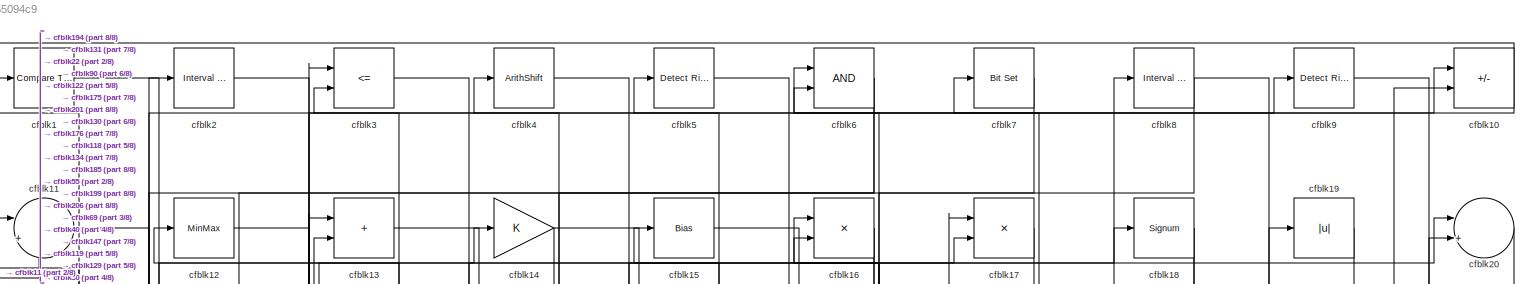
[diagram: root canvas - part 1/8, full width, top band]
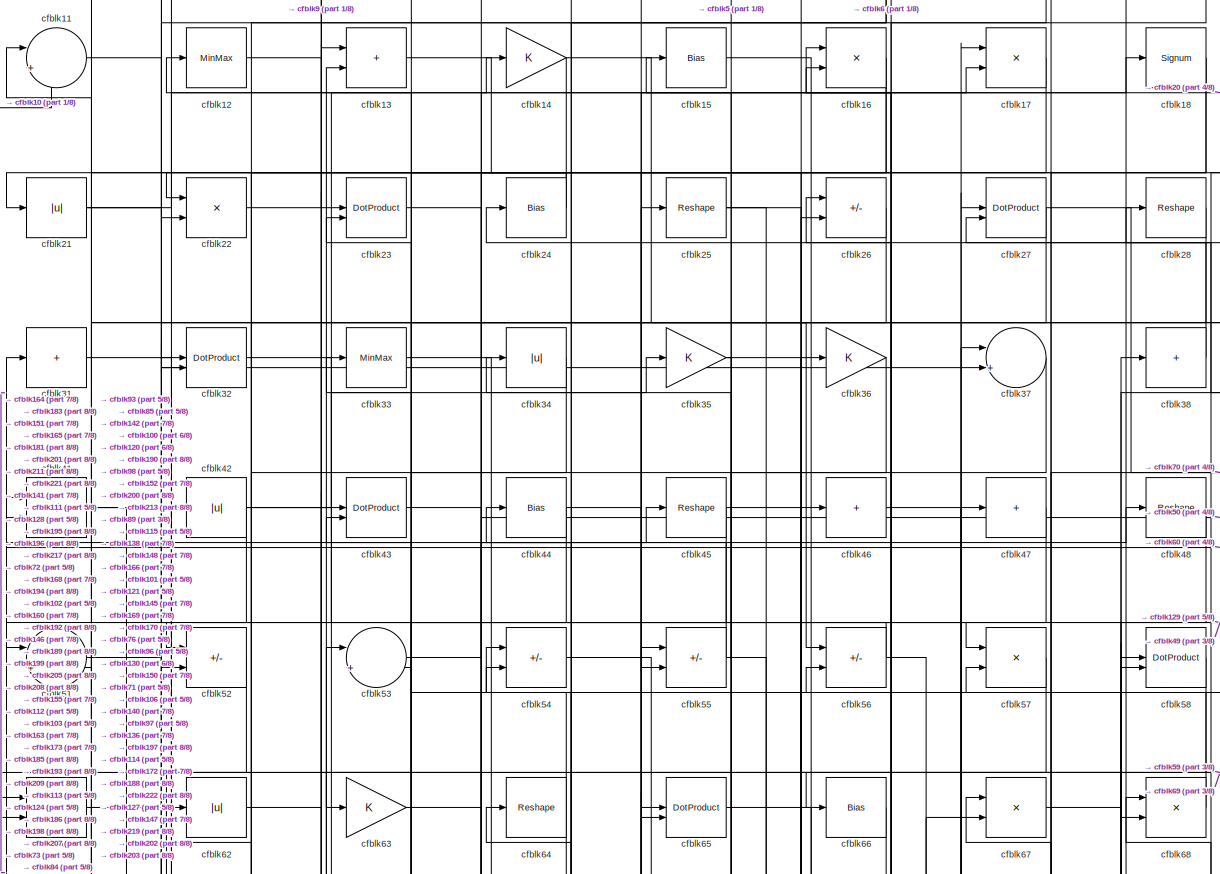
[diagram: root canvas - part 2/8, full width, top band]
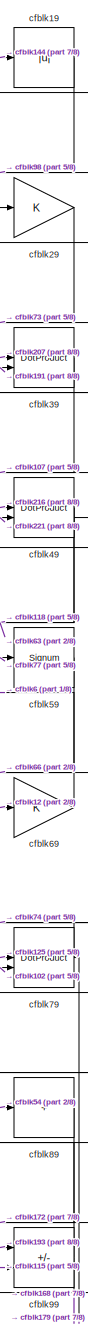
[diagram: root canvas - part 3/8, top right region]
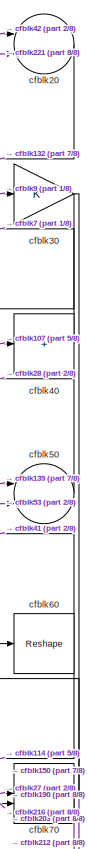
[diagram: root canvas - part 4/8, top right region]
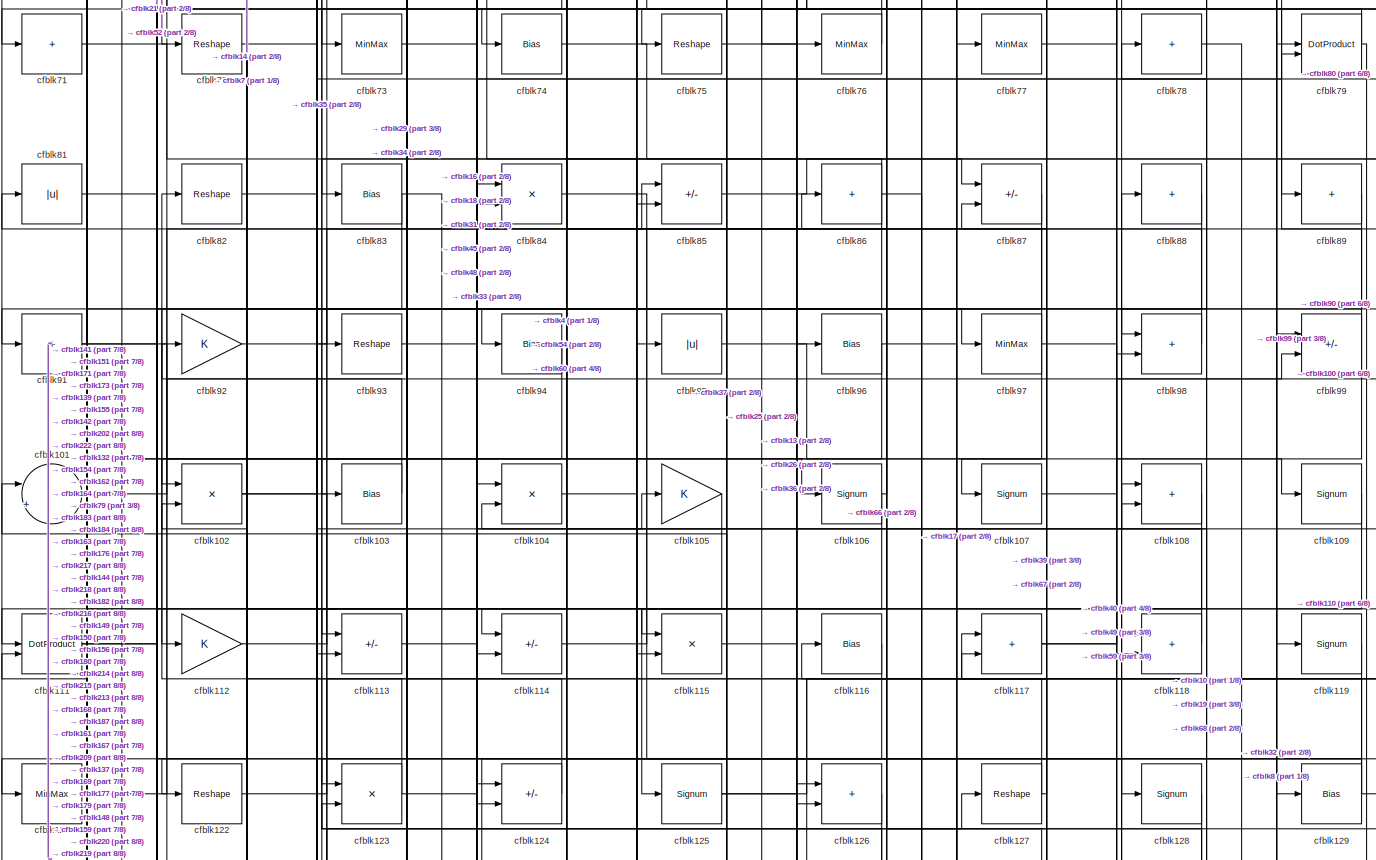
[diagram: root canvas - part 5/8, full width, middle band]
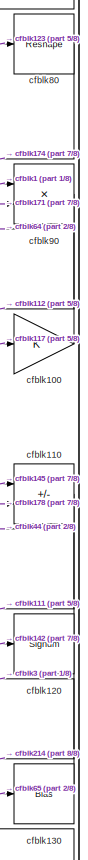
[diagram: root canvas - part 6/8, middle right region]
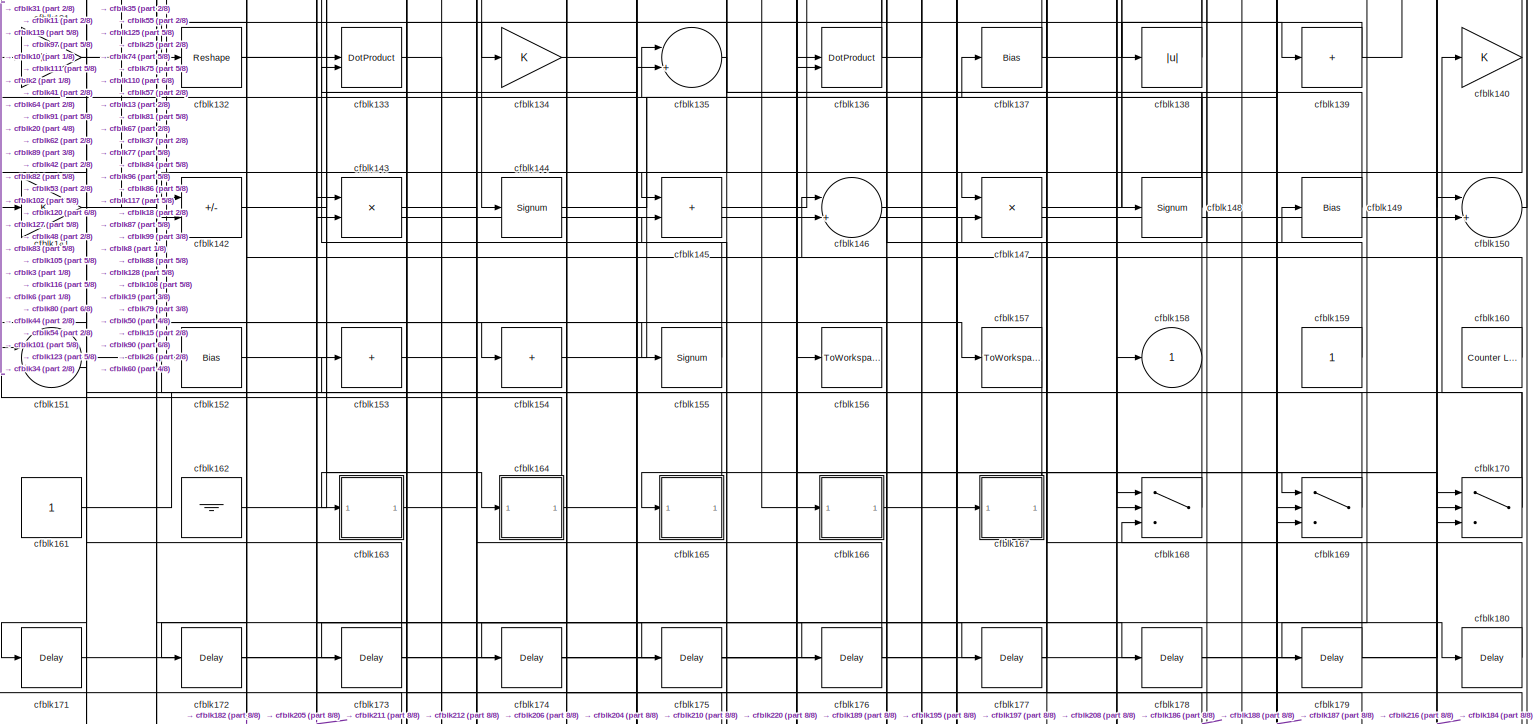
[diagram: root canvas - part 7/8, full width, bottom band]
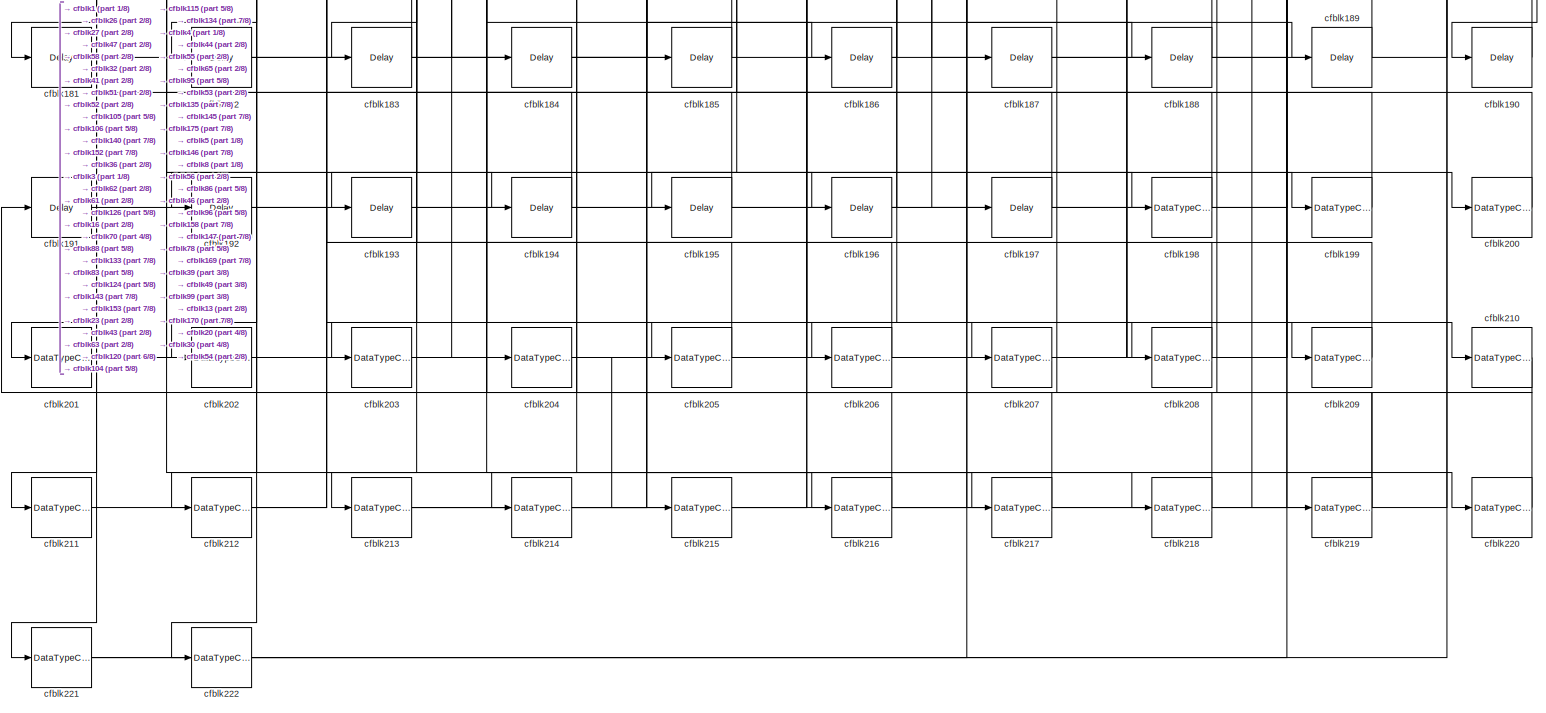
[diagram: root canvas - part 8/8, full width, bottom band]
MODEL slx_0407955094c9
KIND model
CONFIG AbsTol = auto
CONFIG EnableMultiTasking = off
CONFIG FixedStep = auto
CONFIG MaxStep = auto
CONFIG MinStep = auto
CONFIG RelTol = 1e-3
CONFIG SampleTimeConstraint = Unconstrained
CONFIG SolverName = VariableStepAuto
CONFIG StartTime = 0.0
CONFIG StopTime = 10.0
BLOCK [Reference] cfblk1  REF=hdlsllib/Logic and Bit
Operations/Compare
To Zero
  SourceBlock = hdlsllib/Logic and Bit\nOperations/Compare\nTo Zero
  SourceType = Compare To Zero
BLOCK [Sum] cfblk10
  IconShape = rectangular
  Inputs = +-
BLOCK [Gain] cfblk100
BLOCK [Sum] cfblk101
  Inputs = |++
BLOCK [Product] cfblk102
  Inputs = */
  RndMeth = Zero
  SaturateOnIntegerOverflow = on
BLOCK [Bias] cfblk103
  Bias = 0.0
  SaturateOnIntegerOverflow = off
BLOCK [Product] cfblk104
  Inputs = */
  RndMeth = Zero
  SaturateOnIntegerOverflow = on
BLOCK [Gain] cfblk105
BLOCK [Signum] cfblk106
BLOCK [Signum] cfblk107
BLOCK [Sum] cfblk108
  IconShape = rectangular
BLOCK [Signum] cfblk109
BLOCK [Sum] cfblk11
  Inputs = |++
BLOCK [Sum] cfblk110
  IconShape = rectangular
  Inputs = +-
BLOCK [DotProduct] cfblk111
  OutDataTypeStr = Inherit: Inherit via internal rule
BLOCK [Gain] cfblk112
BLOCK [Sum] cfblk113
  IconShape = rectangular
  Inputs = +-
BLOCK [Sum] cfblk114
  IconShape = rectangular
  Inputs = +-
BLOCK [Product] cfblk115
  Inputs = */
  RndMeth = Zero
  SaturateOnIntegerOverflow = on
BLOCK [Bias] cfblk116
  Bias = 0.0
  SaturateOnIntegerOverflow = off
BLOCK [Sum] cfblk117
  IconShape = rectangular
BLOCK [Sum] cfblk118
  IconShape = rectangular
BLOCK [Signum] cfblk119
BLOCK [MinMax] cfblk12
BLOCK [Signum] cfblk120
BLOCK [MinMax] cfblk121
BLOCK [Reshape] cfblk122
BLOCK [Product] cfblk123
  Inputs = */
  RndMeth = Zero
  SaturateOnIntegerOverflow = on
BLOCK [Sum] cfblk124
  IconShape = rectangular
  Inputs = +-
BLOCK [Signum] cfblk125
BLOCK [Sum] cfblk126
  IconShape = rectangular
BLOCK [Reshape] cfblk127
BLOCK [Signum] cfblk128
BLOCK [Bias] cfblk129
  Bias = 0.0
  SaturateOnIntegerOverflow = off
BLOCK [Sum] cfblk13
  IconShape = rectangular
BLOCK [Bias] cfblk130
  Bias = 0.0
  SaturateOnIntegerOverflow = off
BLOCK [Gain] cfblk131
BLOCK [Reshape] cfblk132
BLOCK [DotProduct] cfblk133
  OutDataTypeStr = Inherit: Inherit via internal rule
BLOCK [Gain] cfblk134
BLOCK [Sum] cfblk135
  Inputs = |++
BLOCK [DotProduct] cfblk136
  OutDataTypeStr = Inherit: Inherit via internal rule
BLOCK [Bias] cfblk137
  Bias = 0.0
  SaturateOnIntegerOverflow = off
BLOCK [Abs] cfblk138
  SaturateOnIntegerOverflow = off
BLOCK [Sum] cfblk139
  IconShape = rectangular
  Inputs = +
BLOCK [Gain] cfblk14
BLOCK [Gain] cfblk140
BLOCK [Gain] cfblk141
BLOCK [Sum] cfblk142
  IconShape = rectangular
  Inputs = +-
BLOCK [Product] cfblk143
  Inputs = */
  RndMeth = Zero
  SaturateOnIntegerOverflow = on
BLOCK [Signum] cfblk144
BLOCK [Sum] cfblk145
  IconShape = rectangular
BLOCK [Sum] cfblk146
  Inputs = |++
BLOCK [Product] cfblk147
  Inputs = */
  RndMeth = Zero
  SaturateOnIntegerOverflow = on
BLOCK [Signum] cfblk148
BLOCK [Bias] cfblk149
  Bias = 0.0
  SaturateOnIntegerOverflow = off
BLOCK [Bias] cfblk15
  Bias = 0.0
  SaturateOnIntegerOverflow = off
BLOCK [Sum] cfblk150
  Inputs = |++
BLOCK [Sum] cfblk151
  Inputs = |++
BLOCK [Bias] cfblk152
  Bias = 0.0
  SaturateOnIntegerOverflow = off
BLOCK [Sum] cfblk153
  IconShape = rectangular
  Inputs = +
BLOCK [Sum] cfblk154
  IconShape = rectangular
  Inputs = +
BLOCK [Signum] cfblk155
BLOCK [ToWorkspace] cfblk156
  MaxDataPoints = inf
  SampleTime = -1
  SaveFormat = Timeseries
  VariableName = simout
BLOCK [ToWorkspace] cfblk157
  MaxDataPoints = inf
  SampleTime = -1
  SaveFormat = Timeseries
  VariableName = simout
BLOCK [Outport] cfblk158
  VectorParamsAs1DForOutWhenUnconnected = off
BLOCK [Constant] cfblk159
  SampleTime = -1
BLOCK [Product] cfblk16
  Inputs = */
  RndMeth = Zero
  SaturateOnIntegerOverflow = on
BLOCK [Reference] cfblk160  REF=hdlsllib/Sources/Counter
Limited
  SourceBlock = hdlsllib/Sources/Counter\nLimited
  SourceType = Counter Limited
BLOCK [Constant] cfblk161
  SampleTime = -1
BLOCK [Ground] cfblk162
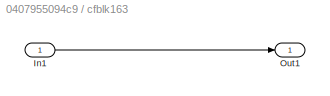
BLOCK [SubSystem] cfblk163
  LibrarySourceBlock = hdlsllib/Ports &\nSubsystems/Subsystem
BLOCK [Inport] cfblk163/In1
BLOCK [Outport] cfblk163/Out1
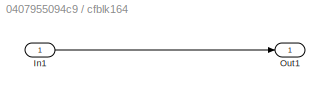
BLOCK [SubSystem] cfblk164
  LibrarySourceBlock = hdlsllib/Ports &\nSubsystems/Subsystem
BLOCK [Inport] cfblk164/In1
BLOCK [Outport] cfblk164/Out1
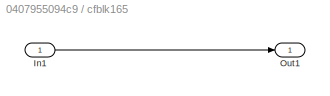
BLOCK [SubSystem] cfblk165
  LibrarySourceBlock = hdlsllib/Ports &\nSubsystems/Subsystem
BLOCK [Inport] cfblk165/In1
BLOCK [Outport] cfblk165/Out1
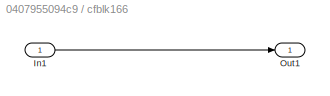
BLOCK [SubSystem] cfblk166
  LibrarySourceBlock = hdlsllib/Ports &\nSubsystems/Subsystem
BLOCK [Inport] cfblk166/In1
BLOCK [Outport] cfblk166/Out1
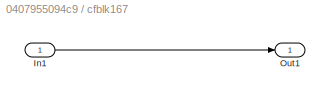
BLOCK [SubSystem] cfblk167
  LibrarySourceBlock = hdlsllib/Ports &\nSubsystems/Subsystem
BLOCK [Inport] cfblk167/In1
BLOCK [Outport] cfblk167/Out1
BLOCK [Switch] cfblk168
  InputSameDT = off
  SaturateOnIntegerOverflow = off
BLOCK [Switch] cfblk169
  InputSameDT = off
  SaturateOnIntegerOverflow = off
BLOCK [Product] cfblk17
  Inputs = */
  RndMeth = Zero
  SaturateOnIntegerOverflow = on
BLOCK [Switch] cfblk170
  InputSameDT = off
  SaturateOnIntegerOverflow = off
BLOCK [Delay] cfblk171
  InputPortMap = u0
  SampleTime = 1
BLOCK [Delay] cfblk172
  InputPortMap = u0
  SampleTime = 1
BLOCK [Delay] cfblk173
  InputPortMap = u0
  SampleTime = 1
BLOCK [Delay] cfblk174
  InputPortMap = u0
  SampleTime = 1
BLOCK [Delay] cfblk175
  InputPortMap = u0
  SampleTime = 1
BLOCK [Delay] cfblk176
  InputPortMap = u0
  SampleTime = 1
BLOCK [Delay] cfblk177
  InputPortMap = u0
  SampleTime = 1
BLOCK [Delay] cfblk178
  InputPortMap = u0
  SampleTime = 1
BLOCK [Delay] cfblk179
  InputPortMap = u0
  SampleTime = 1
BLOCK [Signum] cfblk18
BLOCK [Delay] cfblk180
  InputPortMap = u0
  SampleTime = 1
BLOCK [Delay] cfblk181
  InputPortMap = u0
  SampleTime = 1
BLOCK [Delay] cfblk182
  InputPortMap = u0
  SampleTime = 1
BLOCK [Delay] cfblk183
  InputPortMap = u0
  SampleTime = 1
BLOCK [Delay] cfblk184
  InputPortMap = u0
  SampleTime = 1
BLOCK [Delay] cfblk185
  InputPortMap = u0
  SampleTime = 1
BLOCK [Delay] cfblk186
  InputPortMap = u0
  SampleTime = 1
BLOCK [Delay] cfblk187
  InputPortMap = u0
  SampleTime = 1
BLOCK [Delay] cfblk188
  InputPortMap = u0
  SampleTime = 1
BLOCK [Delay] cfblk189
  InputPortMap = u0
  SampleTime = 1
BLOCK [Abs] cfblk19
  SaturateOnIntegerOverflow = off
BLOCK [Delay] cfblk190
  InputPortMap = u0
  SampleTime = 1
BLOCK [Delay] cfblk191
  InputPortMap = u0
  SampleTime = 1
BLOCK [Delay] cfblk192
  InputPortMap = u0
  SampleTime = 1
BLOCK [Delay] cfblk193
  InputPortMap = u0
  SampleTime = 1
BLOCK [Delay] cfblk194
  InputPortMap = u0
  SampleTime = 1
BLOCK [Delay] cfblk195
  InputPortMap = u0
  SampleTime = 1
BLOCK [Delay] cfblk196
  InputPortMap = u0
  SampleTime = 1
BLOCK [Delay] cfblk197
  InputPortMap = u0
  SampleTime = 1
BLOCK [DataTypeConversion] cfblk198
  OutDataTypeStr = uint8
  RndMeth = Floor
  SaturateOnIntegerOverflow = off
BLOCK [DataTypeConversion] cfblk199
  OutDataTypeStr = uint8
  RndMeth = Floor
  SaturateOnIntegerOverflow = off
BLOCK [Reference] cfblk2  REF=hdlsllib/Logic and Bit
Operations/Interval Test
  SourceBlock = hdlsllib/Logic and Bit\nOperations/Interval Test
  SourceType = Interval Test
BLOCK [Sum] cfblk20
  Inputs = |++
BLOCK [DataTypeConversion] cfblk200
  OutDataTypeStr = uint8
  RndMeth = Floor
  SaturateOnIntegerOverflow = off
BLOCK [DataTypeConversion] cfblk201
  RndMeth = Floor
  SaturateOnIntegerOverflow = off
BLOCK [DataTypeConversion] cfblk202
  OutDataTypeStr = uint8
  RndMeth = Floor
  SaturateOnIntegerOverflow = off
BLOCK [DataTypeConversion] cfblk203
  OutDataTypeStr = uint8
  RndMeth = Floor
  SaturateOnIntegerOverflow = off
BLOCK [DataTypeConversion] cfblk204
  RndMeth = Floor
  SaturateOnIntegerOverflow = off
BLOCK [DataTypeConversion] cfblk205
  OutDataTypeStr = uint8
  RndMeth = Floor
  SaturateOnIntegerOverflow = off
BLOCK [DataTypeConversion] cfblk206
  OutDataTypeStr = uint8
  RndMeth = Floor
  SaturateOnIntegerOverflow = off
BLOCK [DataTypeConversion] cfblk207
  OutDataTypeStr = uint8
  RndMeth = Floor
  SaturateOnIntegerOverflow = off
BLOCK [DataTypeConversion] cfblk208
  OutDataTypeStr = uint8
  RndMeth = Floor
  SaturateOnIntegerOverflow = off
BLOCK [DataTypeConversion] cfblk209
  OutDataTypeStr = uint8
  RndMeth = Floor
  SaturateOnIntegerOverflow = off
BLOCK [Abs] cfblk21
  SaturateOnIntegerOverflow = off
BLOCK [DataTypeConversion] cfblk210
  OutDataTypeStr = uint8
  RndMeth = Floor
  SaturateOnIntegerOverflow = off
BLOCK [DataTypeConversion] cfblk211
  OutDataTypeStr = uint8
  RndMeth = Floor
  SaturateOnIntegerOverflow = off
BLOCK [DataTypeConversion] cfblk212
  OutDataTypeStr = uint8
  RndMeth = Floor
  SaturateOnIntegerOverflow = off
BLOCK [DataTypeConversion] cfblk213
  RndMeth = Floor
  SaturateOnIntegerOverflow = off
BLOCK [DataTypeConversion] cfblk214
  OutDataTypeStr = uint8
  RndMeth = Floor
  SaturateOnIntegerOverflow = off
BLOCK [DataTypeConversion] cfblk215
  OutDataTypeStr = uint8
  RndMeth = Floor
  SaturateOnIntegerOverflow = off
BLOCK [DataTypeConversion] cfblk216
  RndMeth = Floor
  SaturateOnIntegerOverflow = off
BLOCK [DataTypeConversion] cfblk217
  OutDataTypeStr = uint8
  RndMeth = Floor
  SaturateOnIntegerOverflow = off
BLOCK [DataTypeConversion] cfblk218
  OutDataTypeStr = uint8
  RndMeth = Floor
  SaturateOnIntegerOverflow = off
BLOCK [DataTypeConversion] cfblk219
  RndMeth = Floor
  SaturateOnIntegerOverflow = off
BLOCK [Product] cfblk22
  Inputs = */
  RndMeth = Zero
  SaturateOnIntegerOverflow = on
BLOCK [DataTypeConversion] cfblk220
  OutDataTypeStr = uint8
  RndMeth = Floor
  SaturateOnIntegerOverflow = off
BLOCK [DataTypeConversion] cfblk221
  RndMeth = Floor
  SaturateOnIntegerOverflow = off
BLOCK [DataTypeConversion] cfblk222
  OutDataTypeStr = uint8
  RndMeth = Floor
  SaturateOnIntegerOverflow = off
BLOCK [DotProduct] cfblk23
  OutDataTypeStr = Inherit: Inherit via internal rule
BLOCK [Bias] cfblk24
  Bias = 0.0
  SaturateOnIntegerOverflow = off
BLOCK [Reshape] cfblk25
BLOCK [Sum] cfblk26
  IconShape = rectangular
  Inputs = +-
BLOCK [DotProduct] cfblk27
  OutDataTypeStr = Inherit: Inherit via internal rule
BLOCK [Reshape] cfblk28
BLOCK [Gain] cfblk29
BLOCK [RelationalOperator] cfblk3
  InputSameDT = off
  Operator = <=
  OutDataTypeStr = boolean
BLOCK [Gain] cfblk30
BLOCK [Sum] cfblk31
  IconShape = rectangular
  Inputs = +
BLOCK [DotProduct] cfblk32
  OutDataTypeStr = Inherit: Inherit via internal rule
BLOCK [MinMax] cfblk33
BLOCK [Abs] cfblk34
  SaturateOnIntegerOverflow = off
BLOCK [Gain] cfblk35
BLOCK [Gain] cfblk36
BLOCK [Sum] cfblk37
  Inputs = |++
BLOCK [Sum] cfblk38
  IconShape = rectangular
  Inputs = +
BLOCK [DotProduct] cfblk39
  OutDataTypeStr = Inherit: Inherit via internal rule
BLOCK [ArithShift] cfblk4
  BitShiftNumber = 8
  InputPortMap = u0
BLOCK [Sum] cfblk40
  IconShape = rectangular
  Inputs = +
BLOCK [Sum] cfblk41
  IconShape = rectangular
  Inputs = +-
BLOCK [Abs] cfblk42
  SaturateOnIntegerOverflow = off
BLOCK [DotProduct] cfblk43
  OutDataTypeStr = Inherit: Inherit via internal rule
BLOCK [Bias] cfblk44
  Bias = 0.0
  SaturateOnIntegerOverflow = off
BLOCK [Reshape] cfblk45
BLOCK [Sum] cfblk46
  IconShape = rectangular
  Inputs = +
BLOCK [Sum] cfblk47
  IconShape = rectangular
  Inputs = +
BLOCK [Reshape] cfblk48
BLOCK [DotProduct] cfblk49
  OutDataTypeStr = Inherit: Inherit via internal rule
BLOCK [Reference] cfblk5  REF=hdlsllib/Logic and Bit
Operations/Detect Rise
Positive
  SourceBlock = hdlsllib/Logic and Bit\nOperations/Detect Rise\nPositive
  SourceType = Detect Rise Positive
BLOCK [Sum] cfblk50
  Inputs = |++
BLOCK [Sum] cfblk51
  Inputs = |++
BLOCK [Sum] cfblk52
  IconShape = rectangular
  Inputs = +-
BLOCK [Sum] cfblk53
  Inputs = |++
BLOCK [Sum] cfblk54
  IconShape = rectangular
  Inputs = +-
BLOCK [Sum] cfblk55
  IconShape = rectangular
  Inputs = +-
BLOCK [Sum] cfblk56
  IconShape = rectangular
  Inputs = +-
BLOCK [Product] cfblk57
  Inputs = */
  RndMeth = Zero
  SaturateOnIntegerOverflow = on
BLOCK [DotProduct] cfblk58
  OutDataTypeStr = Inherit: Inherit via internal rule
BLOCK [Signum] cfblk59
BLOCK [Logic] cfblk6
  AllPortsSameDT = off
  OutDataTypeStr = boolean
BLOCK [Reshape] cfblk60
BLOCK [Sum] cfblk61
  IconShape = rectangular
BLOCK [Abs] cfblk62
  SaturateOnIntegerOverflow = off
BLOCK [Gain] cfblk63
BLOCK [Reshape] cfblk64
BLOCK [DotProduct] cfblk65
  OutDataTypeStr = Inherit: Inherit via internal rule
BLOCK [Bias] cfblk66
  Bias = 0.0
  SaturateOnIntegerOverflow = off
BLOCK [Product] cfblk67
  Inputs = */
  RndMeth = Zero
  SaturateOnIntegerOverflow = on
BLOCK [Product] cfblk68
  Inputs = */
  RndMeth = Zero
  SaturateOnIntegerOverflow = on
BLOCK [Gain] cfblk69
BLOCK [Reference] cfblk7  REF=simulink/Logic and Bit
Operations/Bit Set
  LibrarySourceBlock = hdlsllib/Logic and Bit\nOperations/Bit Set
  SourceBlock = simulink/Logic and Bit\nOperations/Bit Set
  SourceType = Bit Set
BLOCK [DotProduct] cfblk70
  OutDataTypeStr = Inherit: Inherit via internal rule
BLOCK [Sum] cfblk71
  IconShape = rectangular
  Inputs = +
BLOCK [Reshape] cfblk72
BLOCK [MinMax] cfblk73
BLOCK [Bias] cfblk74
  Bias = 0.0
  SaturateOnIntegerOverflow = off
BLOCK [Reshape] cfblk75
BLOCK [MinMax] cfblk76
BLOCK [MinMax] cfblk77
BLOCK [Sum] cfblk78
  IconShape = rectangular
  Inputs = +
BLOCK [DotProduct] cfblk79
  OutDataTypeStr = Inherit: Inherit via internal rule
BLOCK [Reference] cfblk8  REF=hdlsllib/Logic and Bit
Operations/Interval Test
  SourceBlock = hdlsllib/Logic and Bit\nOperations/Interval Test
  SourceType = Interval Test
BLOCK [Reshape] cfblk80
BLOCK [Abs] cfblk81
  SaturateOnIntegerOverflow = off
BLOCK [Reshape] cfblk82
BLOCK [Bias] cfblk83
  Bias = 0.0
  SaturateOnIntegerOverflow = off
BLOCK [Product] cfblk84
  Inputs = */
  RndMeth = Zero
  SaturateOnIntegerOverflow = on
BLOCK [Sum] cfblk85
  IconShape = rectangular
  Inputs = +-
BLOCK [Sum] cfblk86
  IconShape = rectangular
  Inputs = +
BLOCK [Sum] cfblk87
  IconShape = rectangular
  Inputs = +-
BLOCK [Sum] cfblk88
  IconShape = rectangular
  Inputs = +
BLOCK [Sum] cfblk89
  IconShape = rectangular
  Inputs = +
BLOCK [Reference] cfblk9  REF=hdlsllib/Logic and Bit
Operations/Detect Rise
Nonnegative
  SourceBlock = hdlsllib/Logic and Bit\nOperations/Detect Rise\nNonnegative
  SourceType = Detect Rise Nonnegative
BLOCK [Product] cfblk90
  Inputs = */
  RndMeth = Zero
  SaturateOnIntegerOverflow = on
BLOCK [Sum] cfblk91
  IconShape = rectangular
  Inputs = +
BLOCK [Gain] cfblk92
BLOCK [Reshape] cfblk93
BLOCK [Bias] cfblk94
  Bias = 0.0
  SaturateOnIntegerOverflow = off
BLOCK [Abs] cfblk95
  SaturateOnIntegerOverflow = off
BLOCK [Bias] cfblk96
  Bias = 0.0
  SaturateOnIntegerOverflow = off
BLOCK [MinMax] cfblk97
BLOCK [Sum] cfblk98
  IconShape = rectangular
BLOCK [Sum] cfblk99
  IconShape = rectangular
  Inputs = +-
LINE cfblk100:1 -> cfblk64:1
LINE cfblk101:1 -> cfblk26:2
NET cfblk102:1 -> cfblk164:1, cfblk79:2
LINE cfblk103:1 -> cfblk92:1
LINE cfblk104:1 -> cfblk216:1
LINE cfblk105:1 -> cfblk222:1
NET cfblk106:1 -> cfblk16:1, cfblk202:1
LINE cfblk107:1 -> cfblk40:1
LINE cfblk108:1 -> cfblk125:1
LINE cfblk109:1 -> cfblk121:1
NET cfblk10:1 -> cfblk11:2, cfblk6:2
LINE cfblk110:1 -> cfblk111:1
NET cfblk111:1 -> cfblk139:1, cfblk37:2
LINE cfblk112:1 -> cfblk35:1
LINE cfblk113:1 -> cfblk48:1
LINE cfblk114:1 -> cfblk17:1
LINE cfblk115:1 -> cfblk99:2
LINE cfblk116:1 -> cfblk144:1
NET cfblk117:1 -> cfblk100:1, cfblk98:2
LINE cfblk118:1 -> cfblk4:1
LINE cfblk119:1 -> cfblk171:1
LINE cfblk11:1 -> cfblk57:1
NET cfblk120:1 -> cfblk214:1, cfblk44:1
LINE cfblk121:1 -> cfblk36:1
LINE cfblk122:1 -> cfblk85:1
NET cfblk123:1 -> cfblk102:2, cfblk80:1
LINE cfblk124:1 -> cfblk82:1
NET cfblk125:1 -> cfblk180:1, cfblk79:1
LINE cfblk126:1 -> cfblk213:1
NET cfblk127:1 -> cfblk116:1, cfblk67:1
LINE cfblk128:1 -> cfblk148:1
NET cfblk129:1 -> cfblk10:2, cfblk123:1, cfblk68:1
LINE cfblk12:1 -> cfblk69:1
LINE cfblk130:1 -> cfblk3:2
NET cfblk131:1 -> cfblk10:1, cfblk2:1
NET cfblk132:1 -> cfblk108:2, cfblk178:1
LINE cfblk133:1 -> cfblk204:1
LINE cfblk134:1 -> cfblk189:1
LINE cfblk135:1 -> cfblk195:1
NET cfblk136:1 -> cfblk13:2, cfblk67:2
NET cfblk137:1 -> cfblk86:1, cfblk88:1
LINE cfblk138:1 -> cfblk15:1
NET cfblk139:1 -> cfblk138:1, cfblk50:1
LINE cfblk13:1 -> cfblk96:1
NET cfblk140:1 -> cfblk182:1, cfblk26:1
NET cfblk141:1 -> cfblk177:1, cfblk42:1
LINE cfblk142:1 -> cfblk120:1
LINE cfblk143:1 -> cfblk210:1
LINE cfblk144:1 -> cfblk19:1
NET cfblk145:1 -> cfblk110:1, cfblk57:2
LINE cfblk146:1 -> cfblk170:2
LINE cfblk147:1 -> cfblk8:1
NET cfblk148:1 -> cfblk123:2, cfblk135:1, cfblk34:1
LINE cfblk149:1 -> cfblk101:1
NET cfblk14:1 -> cfblk102:1, cfblk56:1
LINE cfblk150:1 -> cfblk60:1
LINE cfblk151:1 -> cfblk157:1
LINE cfblk152:1 -> cfblk25:1
LINE cfblk153:1 -> cfblk220:1
LINE cfblk154:1 -> cfblk137:1
LINE cfblk155:1 -> cfblk53:1
LINE cfblk159:1 -> cfblk108:1
LINE cfblk15:1 -> cfblk150:1
LINE cfblk160:1 -> cfblk62:1
LINE cfblk161:1 -> cfblk77:1
LINE cfblk162:1 -> cfblk127:1
LINE cfblk163/In1:1 -> cfblk163/Out1:1
LINE cfblk163:1 -> cfblk105:1
LINE cfblk164/In1:1 -> cfblk164/Out1:1
NET cfblk164:1 -> cfblk135:2, cfblk31:1
LINE cfblk165/In1:1 -> cfblk165/Out1:1
LINE cfblk165:1 -> cfblk11:1
LINE cfblk166/In1:1 -> cfblk166/Out1:1
LINE cfblk166:1 -> cfblk149:1
LINE cfblk167/In1:1 -> cfblk167/Out1:1
NET cfblk167:1 -> cfblk131:1, cfblk165:1
LINE cfblk168:1 -> cfblk81:1
LINE cfblk169:1 -> cfblk117:1
NET cfblk16:1 -> cfblk124:2, cfblk193:1
NET cfblk170:1 -> cfblk140:1, cfblk153:1
LINE cfblk171:1 -> cfblk90:2
LINE cfblk172:1 -> cfblk37:1
LINE cfblk173:1 -> cfblk111:2
LINE cfblk174:1 -> cfblk136:1
LINE cfblk175:1 -> cfblk208:1
LINE cfblk176:1 -> cfblk84:1
LINE cfblk177:1 -> cfblk117:2
LINE cfblk178:1 -> cfblk110:2
LINE cfblk179:1 -> cfblk87:2
LINE cfblk17:1 -> cfblk55:2
LINE cfblk180:1 -> cfblk168:3
LINE cfblk181:1 -> cfblk55:1
LINE cfblk182:1 -> cfblk115:2
LINE cfblk183:1 -> cfblk61:1
LINE cfblk184:1 -> cfblk170:1
LINE cfblk185:1 -> cfblk53:2
LINE cfblk186:1 -> cfblk146:1
LINE cfblk187:1 -> cfblk169:2
LINE cfblk188:1 -> cfblk147:2
LINE cfblk189:1 -> cfblk13:1
NET cfblk18:1 -> cfblk147:1, cfblk51:2
LINE cfblk190:1 -> cfblk54:2
LINE cfblk191:1 -> cfblk39:2
LINE cfblk192:1 -> cfblk218:1
LINE cfblk193:1 -> cfblk99:1
LINE cfblk194:1 -> cfblk1:1
LINE cfblk195:1 -> cfblk32:1
LINE cfblk196:1 -> cfblk56:2
LINE cfblk197:1 -> cfblk145:2
LINE cfblk198:1 -> cfblk65:1
LINE cfblk199:1 -> cfblk43:1
LINE cfblk19:1 -> cfblk98:1
LINE cfblk1:1 -> cfblk90:1
LINE cfblk200:1 -> cfblk43:2
NET cfblk201:1 -> cfblk3:1, cfblk46:1, cfblk52:2
LINE cfblk202:1 -> cfblk58:1
LINE cfblk203:1 -> cfblk58:2
NET cfblk204:1 -> cfblk158:1, cfblk169:3, cfblk215:1
LINE cfblk205:1 -> cfblk133:1
LINE cfblk206:1 -> cfblk133:2
LINE cfblk207:1 -> cfblk39:1
LINE cfblk208:1 -> cfblk23:1
LINE cfblk209:1 -> cfblk23:2
LINE cfblk20:1 -> cfblk132:1
LINE cfblk210:1 -> cfblk191:1
LINE cfblk211:1 -> cfblk143:1
LINE cfblk212:1 -> cfblk143:2
NET cfblk213:1 -> cfblk27:1, cfblk65:2, cfblk95:1
LINE cfblk214:1 -> cfblk126:1
LINE cfblk215:1 -> cfblk126:2
NET cfblk216:1 -> cfblk152:1, cfblk49:1, cfblk70:2
LINE cfblk217:1 -> cfblk104:1
LINE cfblk218:1 -> cfblk104:2
NET cfblk219:1 -> cfblk124:1, cfblk27:2
NET cfblk21:1 -> cfblk128:1, cfblk14:1
LINE cfblk220:1 -> cfblk78:1
NET cfblk221:1 -> cfblk20:2, cfblk49:2
LINE cfblk222:1 -> cfblk47:1
LINE cfblk22:1 -> cfblk9:1
LINE cfblk23:1 -> cfblk207:1
NET cfblk24:1 -> cfblk21:1, cfblk22:1
NET cfblk25:1 -> cfblk170:3, cfblk76:1
LINE cfblk26:1 -> cfblk181:1
NET cfblk27:1 -> cfblk211:1, cfblk70:1
LINE cfblk28:1 -> cfblk32:2
LINE cfblk29:1 -> cfblk73:1
LINE cfblk2:1 -> cfblk175:1
NET cfblk30:1 -> cfblk190:1, cfblk212:1
LINE cfblk31:1 -> cfblk84:2
LINE cfblk32:1 -> cfblk129:1
LINE cfblk33:1 -> cfblk85:2
LINE cfblk34:1 -> cfblk113:1
NET cfblk35:1 -> cfblk145:1, cfblk169:1
LINE cfblk36:1 -> cfblk192:1
LINE cfblk37:1 -> cfblk115:1
LINE cfblk38:1 -> cfblk24:1
LINE cfblk39:1 -> cfblk107:1
LINE cfblk3:1 -> cfblk176:1
LINE cfblk40:1 -> cfblk7:1
NET cfblk41:1 -> cfblk168:1, cfblk194:1
NET cfblk42:1 -> cfblk146:2, cfblk20:1, cfblk52:1
LINE cfblk43:1 -> cfblk198:1
NET cfblk44:1 -> cfblk151:1, cfblk200:1
NET cfblk45:1 -> cfblk103:1, cfblk68:2
LINE cfblk46:1 -> cfblk188:1
LINE cfblk47:1 -> cfblk221:1
LINE cfblk48:1 -> cfblk163:1
NET cfblk49:1 -> cfblk118:2, cfblk63:1
LINE cfblk4:1 -> cfblk185:1
LINE cfblk50:1 -> cfblk28:1
LINE cfblk51:1 -> cfblk196:1
LINE cfblk52:1 -> cfblk72:1
NET cfblk53:1 -> cfblk173:1, cfblk50:2
NET cfblk54:1 -> cfblk136:2, cfblk17:2, cfblk89:1
NET cfblk55:1 -> cfblk166:1, cfblk41:1, cfblk5:1
NET cfblk56:1 -> cfblk197:1, cfblk51:1
LINE cfblk57:1 -> cfblk61:2
LINE cfblk58:1 -> cfblk201:1
LINE cfblk59:1 -> cfblk66:1
LINE cfblk5:1 -> cfblk199:1
NET cfblk60:1 -> cfblk114:1, cfblk41:2
LINE cfblk61:1 -> cfblk217:1
LINE cfblk62:1 -> cfblk205:1
LINE cfblk63:1 -> cfblk186:1
NET cfblk64:1 -> cfblk142:2, cfblk33:1
LINE cfblk65:1 -> cfblk130:1
LINE cfblk66:1 -> cfblk71:1
LINE cfblk67:1 -> cfblk38:1
LINE cfblk68:1 -> cfblk12:1
LINE cfblk69:1 -> cfblk6:1
NET cfblk6:1 -> cfblk134:1, cfblk22:2
LINE cfblk70:1 -> cfblk203:1
LINE cfblk71:1 -> cfblk106:1
LINE cfblk72:1 -> cfblk93:1
LINE cfblk73:1 -> cfblk18:1
LINE cfblk74:1 -> cfblk156:1
LINE cfblk75:1 -> cfblk150:2
LINE cfblk76:1 -> cfblk75:1
LINE cfblk77:1 -> cfblk59:1
LINE cfblk78:1 -> cfblk219:1
NET cfblk79:1 -> cfblk179:1, cfblk74:1
LINE cfblk7:1 -> cfblk122:1
LINE cfblk80:1 -> cfblk174:1
LINE cfblk81:1 -> cfblk97:1
LINE cfblk82:1 -> cfblk154:1
NET cfblk83:1 -> cfblk151:2, cfblk184:1
LINE cfblk84:1 -> cfblk167:1
LINE cfblk85:1 -> cfblk87:1
NET cfblk86:1 -> cfblk113:2, cfblk187:1, cfblk83:1
LINE cfblk87:1 -> cfblk91:1
LINE cfblk88:1 -> cfblk183:1
LINE cfblk89:1 -> cfblk172:1
NET cfblk8:1 -> cfblk119:1, cfblk206:1
LINE cfblk90:1 -> cfblk112:1
NET cfblk91:1 -> cfblk114:2, cfblk155:1
LINE cfblk92:1 -> cfblk94:1
LINE cfblk93:1 -> cfblk45:1
LINE cfblk94:1 -> cfblk101:2
LINE cfblk95:1 -> cfblk118:1
NET cfblk96:1 -> cfblk142:1, cfblk209:1
NET cfblk97:1 -> cfblk109:1, cfblk141:1, cfblk16:2
LINE cfblk98:1 -> cfblk54:1
NET cfblk99:1 -> cfblk168:2, cfblk29:1
LINE cfblk9:1 -> cfblk30:1
note: NET lines group one-source signal fan-out (src -> all destinations, sorted); 1:1 wires keep LINE
